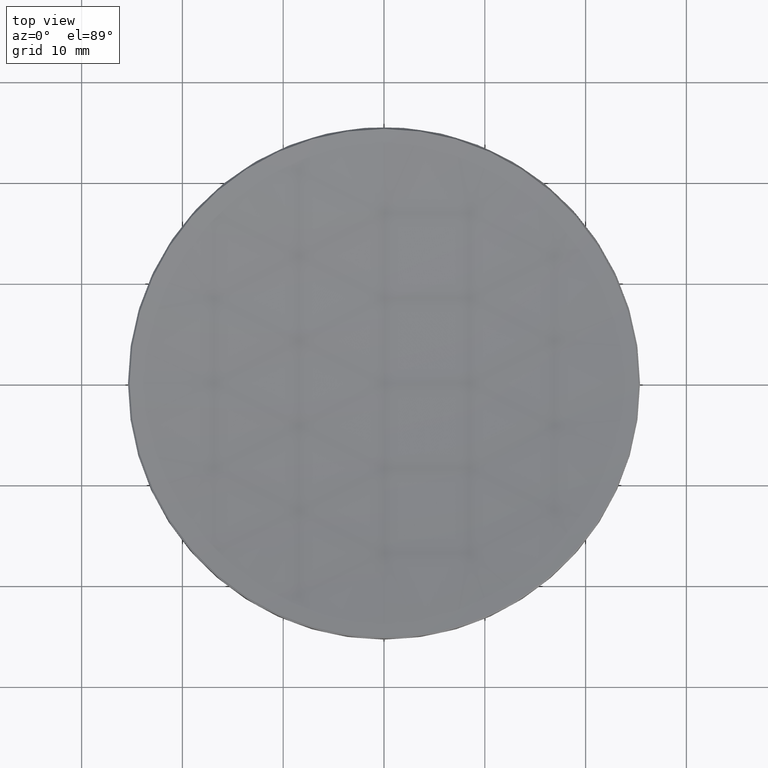
[diagram: clean part render]
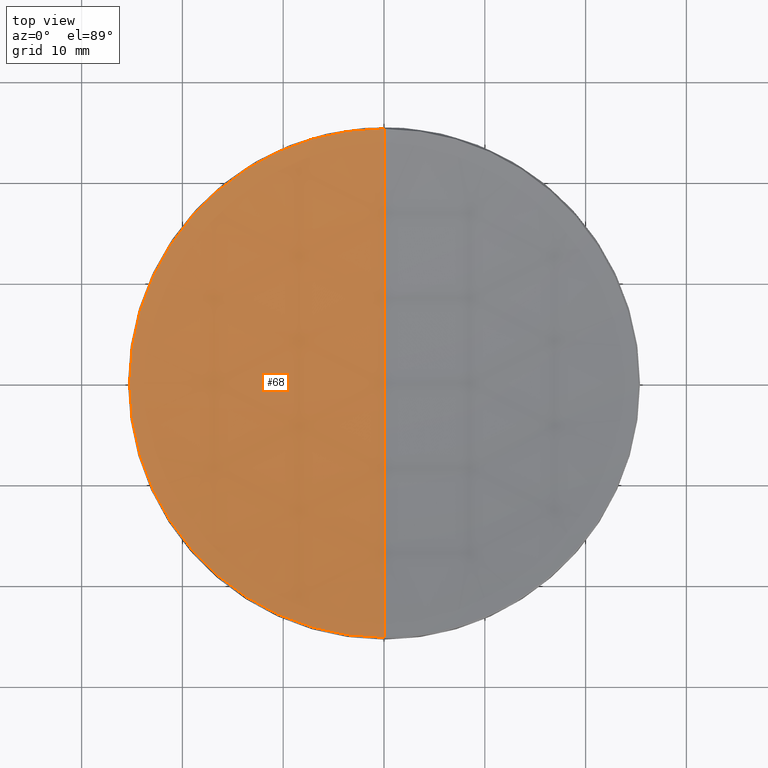
[diagram: same view with one face highlighted and labeled with its STEP entity id]
A machine part, top view. The second image highlights one B-rep face of the part: STEP entity #68.
In plain terms, the highlighted spherical surface has radius 135.25 mm.
Its self-contained STEP definition (entity closure, byte-faithful):
#2 = EDGE_CURVE ( 'NONE', #258, #99, #243, .T. ) ;
#7 = AXIS2_PLACEMENT_3D ( 'NONE', #8, #162, #33 ) ;
#8 = CARTESIAN_POINT ( 'NONE',  ( 0.000000000000000000, 0.000000000000000000, 17.66798998684060251 ) ) ;
#18 = DIRECTION ( 'NONE',  ( -1.000000000000000000, 0.000000000000000000, 0.000000000000000000 ) ) ;
#19 = DIRECTION ( 'NONE',  ( 1.000000000000000000, 0.000000000000000000, 0.000000000000000000 ) ) ;
#21 = AXIS2_PLACEMENT_3D ( 'NONE', #53, #78, #98 ) ;
#33 = DIRECTION ( 'NONE',  ( 1.000000000000000000, 0.000000000000000000, 0.000000000000000000 ) ) ;
#35 = ORIENTED_EDGE ( 'NONE', *, *, #204, .F. ) ;
#53 = CARTESIAN_POINT ( 'NONE',  ( 0.000000000000000000, 0.000000000000000000, 150.5435263759585780 ) ) ;
#58 = CARTESIAN_POINT ( 'NONE',  ( 0.000000000000000000, 0.000000000000000000, 150.5435263759585780 ) ) ;
#60 = EDGE_LOOP ( 'NONE', ( #35, #161, #75, #206 ) ) ;
#68 = ADVANCED_FACE ( 'NONE', ( #264 ), #190, .F. ) ;
#70 = DIRECTION ( 'NONE',  ( 0.000000000000000000, 1.000000000000000000, 0.000000000000000000 ) ) ;
#75 = ORIENTED_EDGE ( 'NONE', *, *, #268, .T. ) ;
#78 = DIRECTION ( 'NONE',  ( -1.000000000000000000, 1.224646799147353207E-16, 0.000000000000000000 ) ) ;
#82 = CARTESIAN_POINT ( 'NONE',  ( 0.000000000000000000, 8.281673979233975438E-15, 15.29352637595859932 ) ) ;
#85 = AXIS2_PLACEMENT_3D ( 'NONE', #160, #271, #205 ) ;
#98 = DIRECTION ( 'NONE',  ( -1.224646799147353454E-16, -1.000000000000000000, 0.000000000000000000 ) ) ;
#99 = VERTEX_POINT ( 'NONE', #196 ) ;
#145 = CIRCLE ( 'NONE', #85, 25.23201001315934988 ) ;
#147 = VERTEX_POINT ( 'NONE', #270 ) ;
#151 = AXIS2_PLACEMENT_3D ( 'NONE', #58, #19, #189 ) ;
#153 = CIRCLE ( 'NONE', #21, 135.2499999999999716 ) ;
#160 = CARTESIAN_POINT ( 'NONE',  ( 0.000000000000000000, 0.000000000000000000, 17.66798998684060251 ) ) ;
#161 = ORIENTED_EDGE ( 'NONE', *, *, #2, .T. ) ;
#162 = DIRECTION ( 'NONE',  ( -0.000000000000000000, -0.000000000000000000, 1.000000000000000000 ) ) ;
#175 = AXIS2_PLACEMENT_3D ( 'NONE', #214, #18, #70 ) ;
#180 = VERTEX_POINT ( 'NONE', #197 ) ;
#189 = DIRECTION ( 'NONE',  ( 0.000000000000000000, 0.000000000000000000, -1.000000000000000000 ) ) ;
#190 = SPHERICAL_SURFACE ( 'NONE', #175, 135.2499999999999716 ) ;
#194 = EDGE_CURVE ( 'NONE', #180, #147, #145, .T. ) ;
#196 = CARTESIAN_POINT ( 'NONE',  ( 0.000000000000000000, 25.23201001315939607, 17.66798998684061672 ) ) ;
#197 = CARTESIAN_POINT ( 'NONE',  ( -25.23201001315934988, 0.000000000000000000, 17.66798998684060251 ) ) ;
#204 = EDGE_CURVE ( 'NONE', #258, #147, #153, .T. ) ;
#205 = DIRECTION ( 'NONE',  ( 1.000000000000000000, 0.000000000000000000, 0.000000000000000000 ) ) ;
#206 = ORIENTED_EDGE ( 'NONE', *, *, #194, .T. ) ;
#214 = CARTESIAN_POINT ( 'NONE',  ( 0.000000000000000000, 0.000000000000000000, 150.5435263759585780 ) ) ;
#234 = CIRCLE ( 'NONE', #7, 25.23201001315934988 ) ;
#243 = CIRCLE ( 'NONE', #151, 135.2499999999999716 ) ;
#258 = VERTEX_POINT ( 'NONE', #82 ) ;
#264 = FACE_OUTER_BOUND ( 'NONE', #60, .T. ) ;
#268 = EDGE_CURVE ( 'NONE', #99, #180, #234, .T. ) ;
#270 = CARTESIAN_POINT ( 'NONE',  ( -3.090030029866962391E-15, -25.23201001315939607, 17.66798998684061672 ) ) ;
#271 = DIRECTION ( 'NONE',  ( -0.000000000000000000, -0.000000000000000000, 1.000000000000000000 ) ) ;